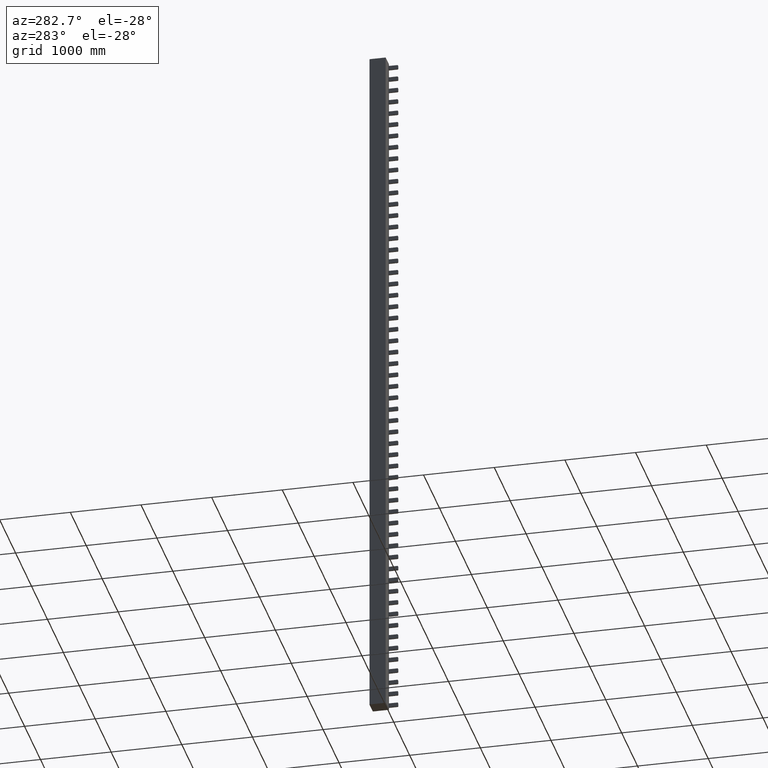
[diagram: clean part render]
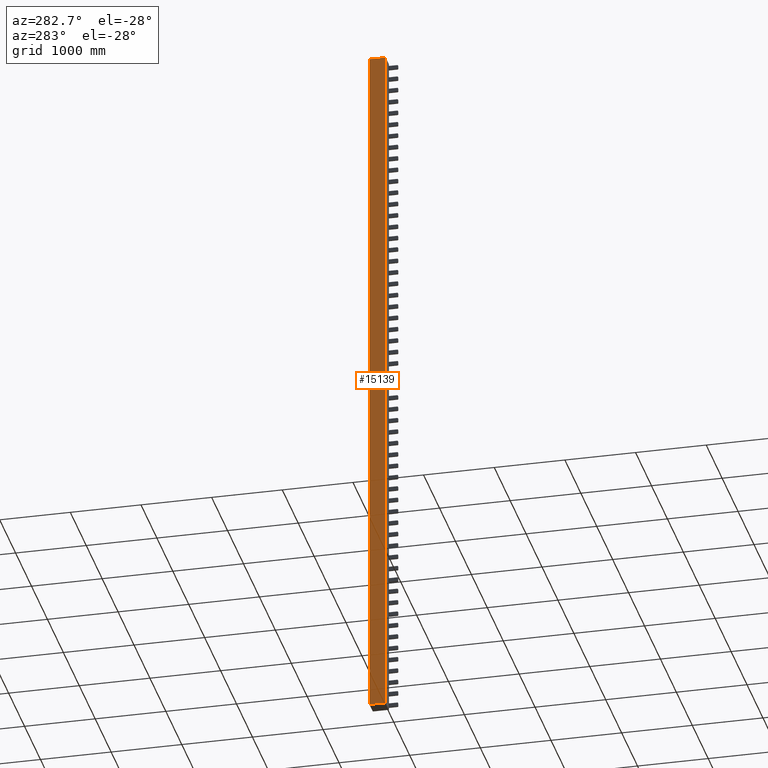
[diagram: same view with one face highlighted and labeled with its STEP entity id]
A machine part, auxiliary view. The second image highlights one B-rep face of the part: STEP entity #15139.
In plain terms, the highlighted planar face has unit normal (-1, -0, 0).
Its self-contained STEP definition (entity closure, byte-faithful):
#14939=CARTESIAN_POINT('',(6698.0208871468094,6049.4066631202095,-10000.0));
#14940=VERTEX_POINT('',#14939);
#14948=CARTESIAN_POINT('',(6698.0208871467594,6266.4066631202077,-10000.0));
#14949=VERTEX_POINT('',#14948);
#14950=CARTESIAN_POINT('',(6698.0208871467594,6266.4066631202077,-10000.0));
#14951=DIRECTION('',(2.221347E-013,-1.0,0.0));
#14952=VECTOR('',#14951,216.99999999999818);
#14953=LINE('',#14950,#14952);
#14954=EDGE_CURVE('',#14949,#14940,#14953,.T.);
#15040=CARTESIAN_POINT('',(6698.0208871467594,6266.4066631202077,90.0));
#15041=VERTEX_POINT('',#15040);
#15049=CARTESIAN_POINT('',(6698.0208871468058,6049.4066631202095,90.0));
#15050=VERTEX_POINT('',#15049);
#15051=CARTESIAN_POINT('',(6698.0208871468094,6049.4066631202095,90.0));
#15052=DIRECTION('',(-2.221347E-013,1.0,0.0));
#15053=VECTOR('',#15052,216.99999999999818);
#15054=LINE('',#15051,#15053);
#15055=EDGE_CURVE('',#15050,#15041,#15054,.T.);
#15112=CARTESIAN_POINT('',(6698.0208871467594,6266.4066631202077,-10000.0));
#15113=DIRECTION('',(0.0,0.0,1.0));
#15114=VECTOR('',#15113,10090.0);
#15115=LINE('',#15112,#15114);
#15116=EDGE_CURVE('',#14949,#15041,#15115,.T.);
#15123=CARTESIAN_POINT('',(6698.0208871467566,6276.4066631202131,0.0));
#15124=DIRECTION('',(-1.0,-2.224308E-013,0.0));
#15125=DIRECTION('',(0.0,0.0,1.0));
#15126=AXIS2_PLACEMENT_3D('',#15123,#15124,#15125);
#15127=PLANE('',#15126);
#15128=ORIENTED_EDGE('',*,*,#15116,.F.);
#15129=ORIENTED_EDGE('',*,*,#14954,.T.);
#15130=CARTESIAN_POINT('',(6698.0208871468094,6049.4066631202095,90.0));
#15131=DIRECTION('',(0.0,0.0,-1.0));
#15132=VECTOR('',#15131,10090.0);
#15133=LINE('',#15130,#15132);
#15134=EDGE_CURVE('',#15050,#14940,#15133,.T.);
#15135=ORIENTED_EDGE('',*,*,#15134,.F.);
#15136=ORIENTED_EDGE('',*,*,#15055,.T.);
#15137=EDGE_LOOP('',(#15128,#15129,#15135,#15136));
#15138=FACE_OUTER_BOUND('',#15137,.T.);
#15139=ADVANCED_FACE('',(#15138),#15127,.T.);